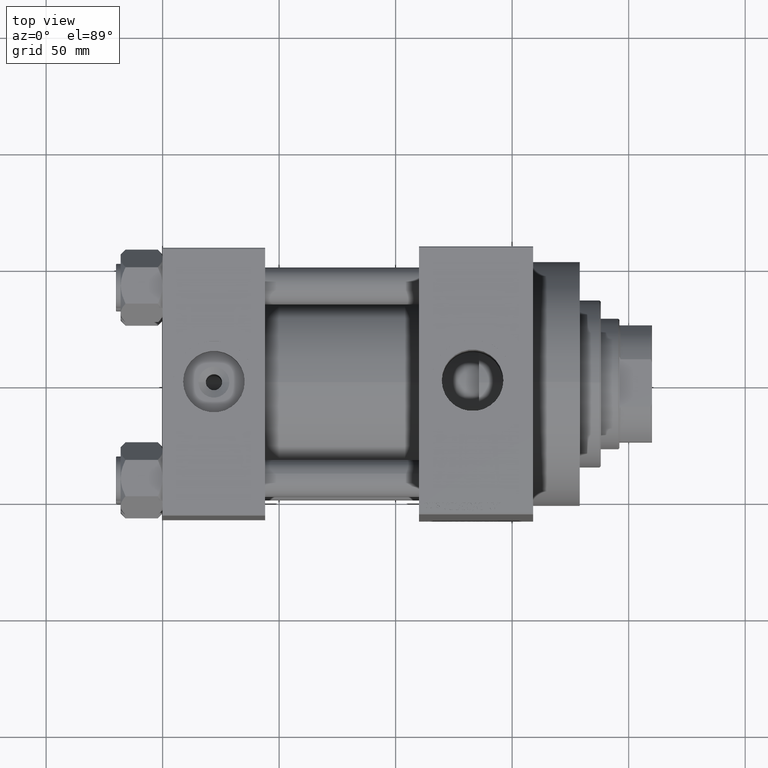
[diagram: clean part render]
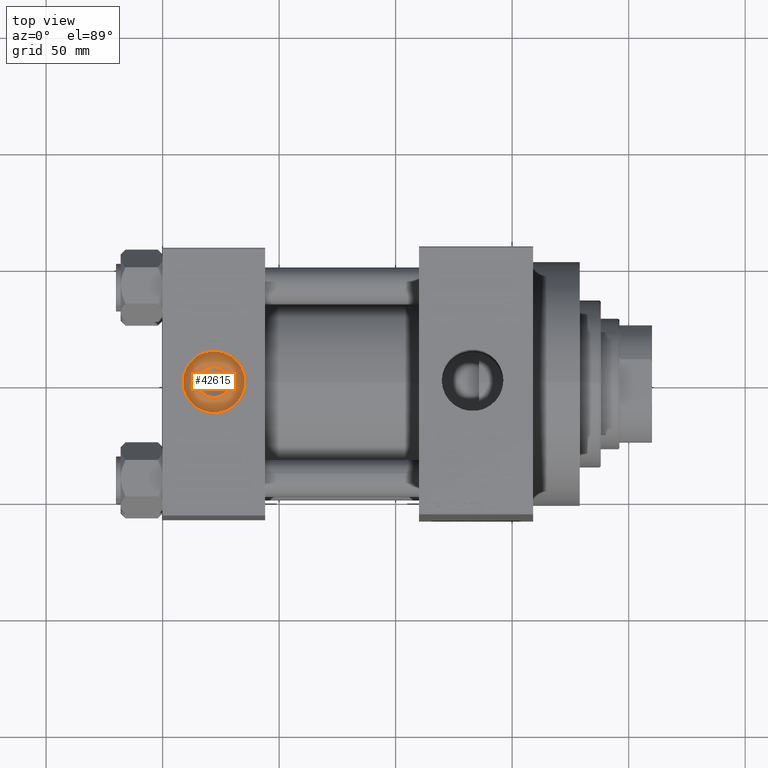
[diagram: same view with one face highlighted and labeled with its STEP entity id]
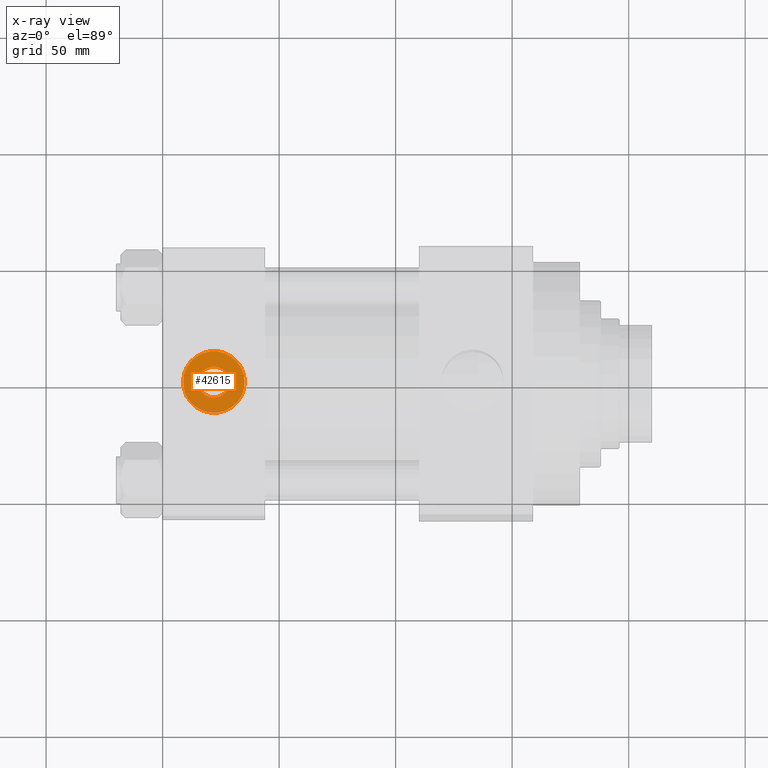
[diagram: x-ray of the same camera — body ghosted, the highlighted face saturated]
A machine part, top view. The second image highlights one B-rep face of the part: STEP entity #42615.
The next image is the same camera in x-ray: the body ghosted, the highlighted face saturated — about 0% of this face is hidden behind the body in this view.
In plain terms, the highlighted planar face has unit normal (0, 0, 1).
Its self-contained STEP definition (entity closure, byte-faithful):
#71 = EDGE_CURVE ( 'NONE', #28116, #35571, #13592, .T. ) ;
#112 = EDGE_LOOP ( 'NONE', ( #34575, #33743 ) ) ;
#1168 = DIRECTION ( 'NONE',  ( 1.000000000000000000, 0.000000000000000000, 0.000000000000000000 ) ) ;
#1985 = EDGE_CURVE ( 'NONE', #36994, #2073, #37526, .T. ) ;
#2073 = VERTEX_POINT ( 'NONE', #38800 ) ;
#2964 = EDGE_CURVE ( 'NONE', #35571, #28116, #44504, .T. ) ;
#6254 = CIRCLE ( 'NONE', #33263, 6.640000000000006786 ) ;
#8674 = CARTESIAN_POINT ( 'NONE',  ( 22.00000000000000000, -8.673617379884035472E-15, 46.70000000000000284 ) ) ;
#9043 = AXIS2_PLACEMENT_3D ( 'NONE', #44147, #46808, #21224 ) ;
#10311 = FACE_BOUND ( 'NONE', #26873, .T. ) ;
#10548 = PLANE ( 'NONE',  #22681 ) ;
#13240 = DIRECTION ( 'NONE',  ( 0.000000000000000000, 0.000000000000000000, 1.000000000000000000 ) ) ;
#13592 = CIRCLE ( 'NONE', #15140, 13.22000000000000242 ) ;
#14653 = CARTESIAN_POINT ( 'NONE',  ( 22.00000000000000000, -8.673617379884035472E-15, 46.70000000000000284 ) ) ;
#14889 = DIRECTION ( 'NONE',  ( 1.000000000000000000, 0.000000000000000000, -0.000000000000000000 ) ) ;
#15140 = AXIS2_PLACEMENT_3D ( 'NONE', #8674, #13240, #27472 ) ;
#16446 = CARTESIAN_POINT ( 'NONE',  ( 35.21999999999999886, -8.673617379884035472E-15, 46.70000000000000284 ) ) ;
#17452 = CARTESIAN_POINT ( 'NONE',  ( 8.779999999999994031, -7.054634311411234321E-15, 46.70000000000000284 ) ) ;
#19408 = ORIENTED_EDGE ( 'NONE', *, *, #1985, .T. ) ;
#21224 = DIRECTION ( 'NONE',  ( 1.000000000000000000, 0.000000000000000000, 0.000000000000000000 ) ) ;
#22121 = DIRECTION ( 'NONE',  ( 0.000000000000000000, 0.000000000000000000, 1.000000000000000000 ) ) ;
#22681 = AXIS2_PLACEMENT_3D ( 'NONE', #14653, #22121, #14889 ) ;
#25811 = CARTESIAN_POINT ( 'NONE',  ( 22.00000000000000000, -8.673617379884035472E-15, 46.70000000000000284 ) ) ;
#26026 = CARTESIAN_POINT ( 'NONE',  ( 22.00000000000000000, -8.673617379884035472E-15, 46.70000000000000284 ) ) ;
#26873 = EDGE_LOOP ( 'NONE', ( #19408, #40012 ) ) ;
#27472 = DIRECTION ( 'NONE',  ( 1.000000000000000000, 0.000000000000000000, 0.000000000000000000 ) ) ;
#28116 = VERTEX_POINT ( 'NONE', #17452 ) ;
#30156 = DIRECTION ( 'NONE',  ( 1.000000000000000000, 0.000000000000000000, 0.000000000000000000 ) ) ;
#30613 = DIRECTION ( 'NONE',  ( -0.000000000000000000, -0.000000000000000000, -1.000000000000000000 ) ) ;
#31336 = AXIS2_PLACEMENT_3D ( 'NONE', #26026, #30613, #1168 ) ;
#32238 = EDGE_CURVE ( 'NONE', #2073, #36994, #6254, .T. ) ;
#32767 = FACE_OUTER_BOUND ( 'NONE', #112, .T. ) ;
#33263 = AXIS2_PLACEMENT_3D ( 'NONE', #25811, #40536, #30156 ) ;
#33743 = ORIENTED_EDGE ( 'NONE', *, *, #71, .T. ) ;
#34575 = ORIENTED_EDGE ( 'NONE', *, *, #2964, .T. ) ;
#35571 = VERTEX_POINT ( 'NONE', #16446 ) ;
#36994 = VERTEX_POINT ( 'NONE', #38766 ) ;
#37526 = CIRCLE ( 'NONE', #31336, 6.640000000000006786 ) ;
#38766 = CARTESIAN_POINT ( 'NONE',  ( 28.64000000000000412, -8.673617379884035472E-15, 46.70000000000000284 ) ) ;
#38800 = CARTESIAN_POINT ( 'NONE',  ( 15.35999999999999233, -7.860451905250192574E-15, 46.70000000000000284 ) ) ;
#40012 = ORIENTED_EDGE ( 'NONE', *, *, #32238, .T. ) ;
#40536 = DIRECTION ( 'NONE',  ( -0.000000000000000000, -0.000000000000000000, -1.000000000000000000 ) ) ;
#42615 = ADVANCED_FACE ( 'NONE', ( #10311, #32767 ), #10548, .T. ) ;
#44147 = CARTESIAN_POINT ( 'NONE',  ( 22.00000000000000000, -8.673617379884035472E-15, 46.70000000000000284 ) ) ;
#44504 = CIRCLE ( 'NONE', #9043, 13.22000000000000242 ) ;
#46808 = DIRECTION ( 'NONE',  ( 0.000000000000000000, 0.000000000000000000, 1.000000000000000000 ) ) ;